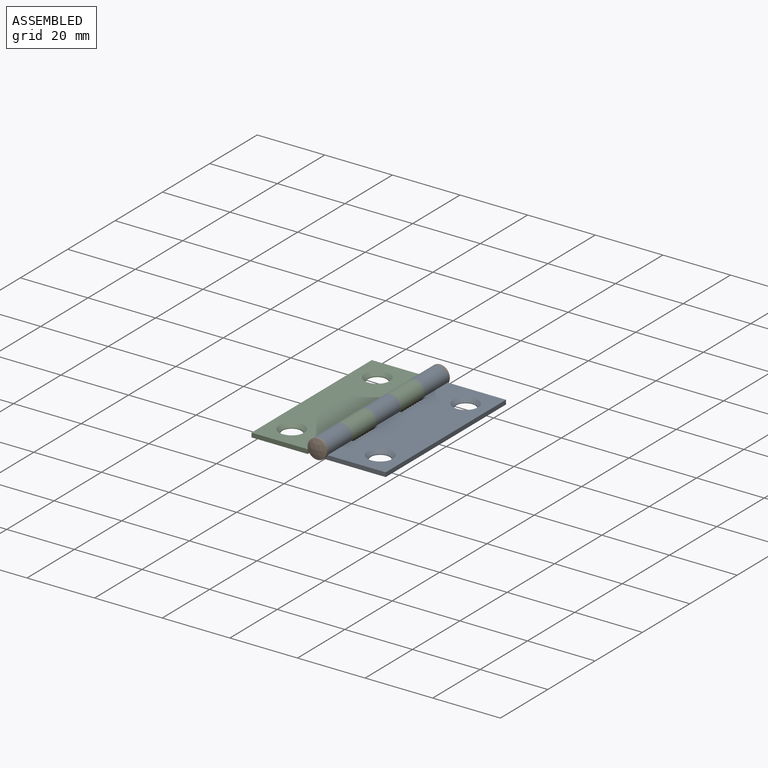
[diagram: assembled view]
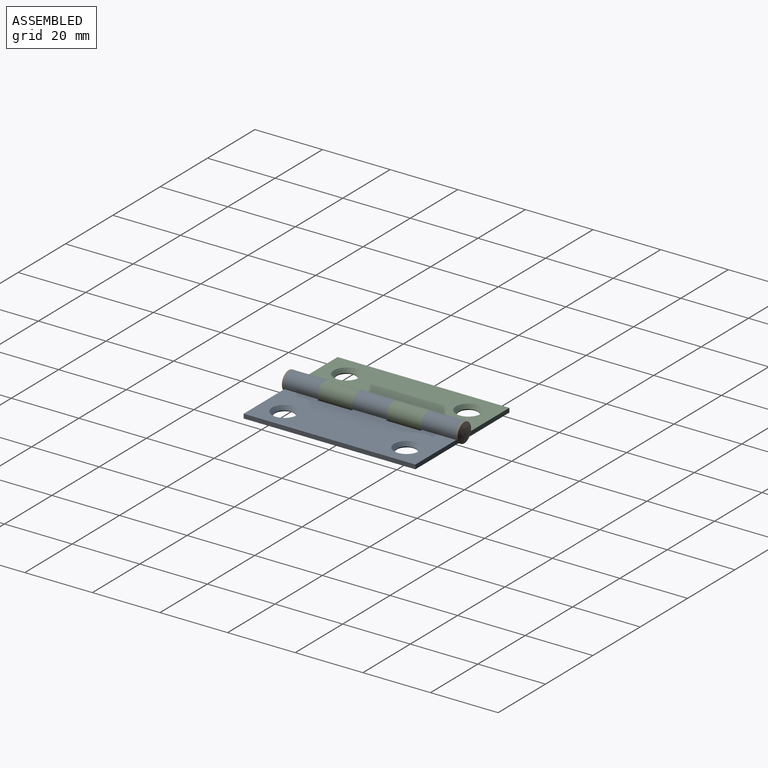
[diagram: assembled view, second angle]
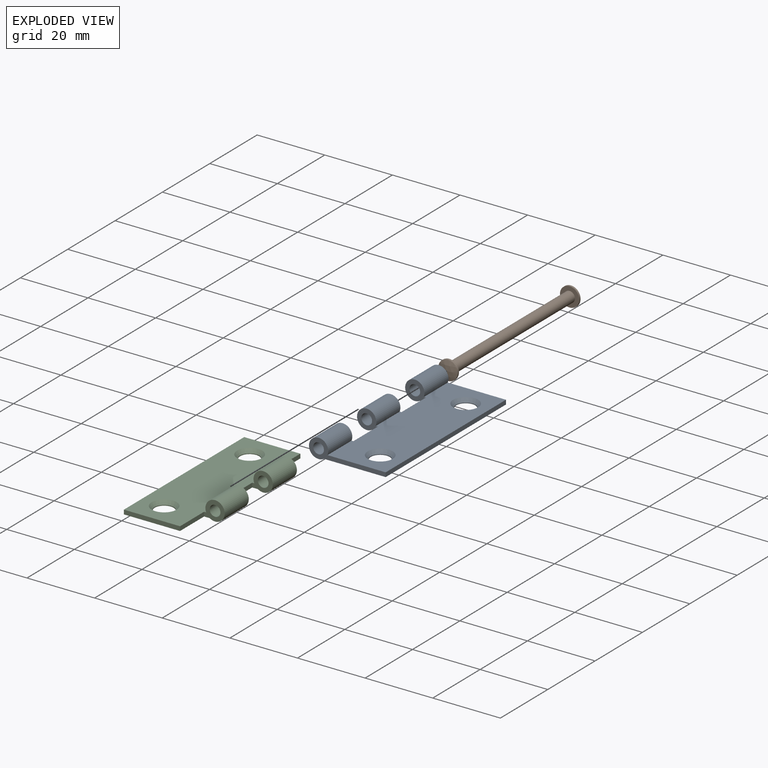
[diagram: exploded view]
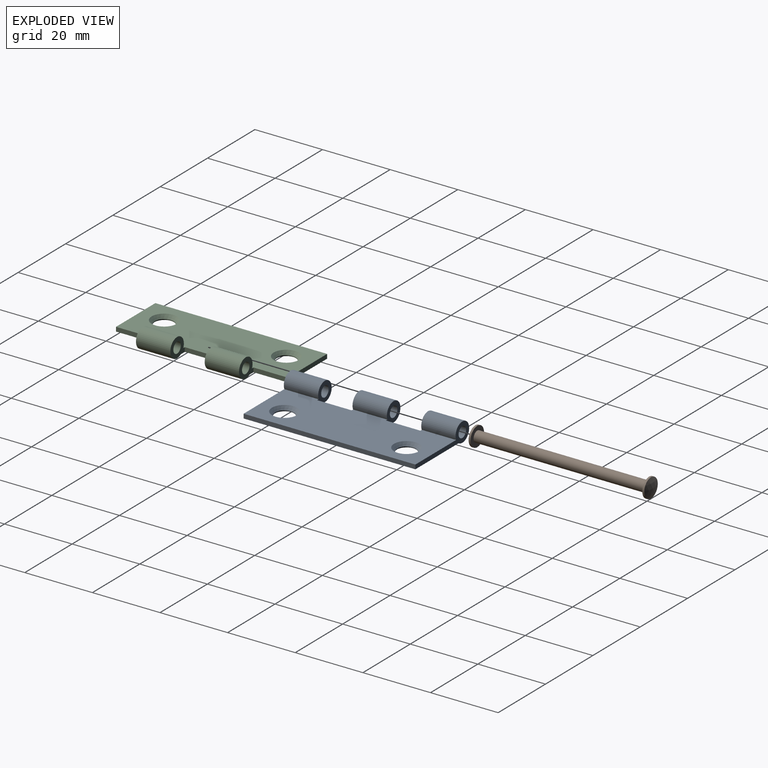
[diagram: exploded view, second angle]
ASSEMBLY  parts=3 mates=2
PART A: 21 faces, bbox 22.7x50.8x5.7 mm
  f0: cone r=2.56mm half-angle=41deg, axis (0,0,1), area 28.1mm2, adj f1,f10
  f1: cylinder r=2.82mm len=5.64mm, axis (0,0,1), area 4.2mm2, adj f0,f14
  f2: cone r=2.56mm half-angle=41deg, axis (0,0,1), area 28.1mm2, adj f3,f10
  f3: cylinder r=2.82mm len=5.64mm, axis (0,0,1), area 4.2mm2, adj f2,f14
  f4: cylinder r=1.59mm len=10.16mm, axis (0,1,0), area 101.3mm2, adj f11,f20
  f5: cylinder r=2.86mm len=10.16mm, axis (0,1,0), area 165.4mm2, adj f10,f11,f14,f20
  f6: cylinder r=1.59mm len=10.16mm, axis (0,1,0), area 101.3mm2, adj f12,f16
  f7: cylinder r=2.86mm len=10.16mm, axis (0,1,0), area 165.4mm2, adj f10,f12,f14,f16
  f8: cylinder r=1.59mm len=10.16mm, axis (0,1,0), area 101.3mm2, adj f17,f19
  f9: cylinder r=2.86mm len=10.16mm, axis (0,1,0), area 165.4mm2, adj f10,f14,f17,f19
  f10: plane 50.8x17.21mm, normal (0,0,1), area 775.1mm2, adj f0,f2,f5,f7,f9,f11,f12,f13
  f11: plane 22.7x5.72mm, normal (0,-1,0), area 40.1mm2, adj f4,f5,f10,f13,f14
  f12: plane 22.7x5.72mm, normal (0,1,0), area 40.1mm2, adj f6,f7,f10,f13,f14
  f13: plane 50.8x1.27mm, normal (1,0,0), area 64.5mm2, adj f10,f11,f12,f14
  f14: plane 50.8x18.26mm, normal (0,0,-1), area 843.9mm2, adj f1,f3,f5,f7,f9,f11,f12,f13
  f15: plane 10.16x1.27mm, normal (-1,0,0), area 12.9mm2, adj f10,f14,f16,f17
  f16: plane 6.1x5.72mm, normal (0,-1,0), area 19mm2, adj f6,f7,f10,f14,f15
  f17: plane 6.1x5.72mm, normal (0,1,0), area 19mm2, adj f8,f9,f10,f14,f15
  f18: plane 10.16x1.27mm, normal (-1,0,0), area 12.9mm2, adj f10,f14,f19,f20
  f19: plane 6.1x5.72mm, normal (0,-1,0), area 19mm2, adj f8,f9,f10,f14,f18
  f20: plane 6.1x5.72mm, normal (0,1,0), area 19mm2, adj f4,f5,f10,f14,f18
PART B: 7 faces, bbox 5.7x53.1x5.7 mm
  f0: cylinder r=2.86mm len=5.72mm, axis (0,1,0), area 10.3mm2, adj f4,f6
  f1: cylinder r=1.59mm len=50.8mm, axis (0,1,0), area 506.7mm2, adj f5,f6
  f2: cylinder r=2.86mm len=5.72mm, axis (0,1,0), area 10.3mm2, adj f3,f5
  f3: sphere r=7.43mm, area 26.7mm2, adj f2
  f4: sphere r=7.43mm, area 26.7mm2, adj f0
  f5: plane 5.72x5.72mm, normal (0,1,0), area 17.7mm2, adj f1,f2
  f6: plane 5.72x5.72mm, normal (0,-1,0), area 17.7mm2, adj f0,f1
PART C: 20 faces, bbox 22.7x50.8x5.7 mm
  f0: cylinder r=1.59mm len=10.16mm, axis (0,1,0), area 101.3mm2, adj f18,f19
  f1: cylinder r=2.86mm len=10.16mm, axis (0,1,0), area 165.4mm2, adj f11,f13,f18,f19
  f2: cylinder r=1.59mm len=10.16mm, axis (0,1,0), area 101.3mm2, adj f16,f17
  f3: cylinder r=2.86mm len=10.16mm, axis (0,1,0), area 165.4mm2, adj f11,f13,f16,f17
  f4: cone r=2.56mm half-angle=41deg, axis (0,0,1), area 28.1mm2, adj f7,f13
  f5: cone r=2.56mm half-angle=41deg, axis (0,0,1), area 28.1mm2, adj f6,f13
  f6: cylinder r=2.82mm len=5.64mm, axis (0,0,1), area 4.2mm2, adj f5,f11
  f7: cylinder r=2.82mm len=5.64mm, axis (0,0,1), area 4.2mm2, adj f4,f11
  f8: plane 10.16x1.27mm, normal (1,0,0), area 12.9mm2, adj f11,f13,f16,f19
  f9: plane 10.16x1.27mm, normal (1,0,0), area 12.9mm2, adj f11,f13,f14,f18
  f10: plane 50.8x1.27mm, normal (-1,0,0), area 64.5mm2, adj f11,f13,f14,f15
  f11: plane 50.8x18.26mm, normal (0,0,-1), area 827.1mm2, adj f1,f3,f6,f7,f8,f9,f10,f12
  f12: plane 10.16x1.27mm, normal (1,0,0), area 12.9mm2, adj f11,f13,f15,f17
  f13: plane 50.8x17.21mm, normal (0,0,1), area 769mm2, adj f1,f3,f4,f5,f8,f9,f10,f12
  f14: plane 16.61x1.27mm, normal (0,-1,0), area 21.1mm2, adj f9,f10,f11,f13
  f15: plane 16.61x1.27mm, normal (0,1,0), area 21.1mm2, adj f10,f11,f12,f13
  f16: plane 6.1x5.72mm, normal (0,-1,0), area 19mm2, adj f2,f3,f8,f11,f13
  f17: plane 6.1x5.72mm, normal (0,1,0), area 19mm2, adj f2,f3,f11,f12,f13
  f18: plane 6.1x5.72mm, normal (0,-1,0), area 19mm2, adj f0,f1,f9,f11,f13
  f19: plane 6.1x5.72mm, normal (0,1,0), area 19mm2, adj f0,f1,f8,f11,f13
PLACE A at identity
PLACE B at identity
PLACE C at identity fixed
MATE revolute C.f0 <-> A.f4  axis (0,-1,0) through (0,-15.24,0)mm
MATE fastened A.f4 <-> B.f0  axis (0,1,0) through (0,-25.4,0)mm
